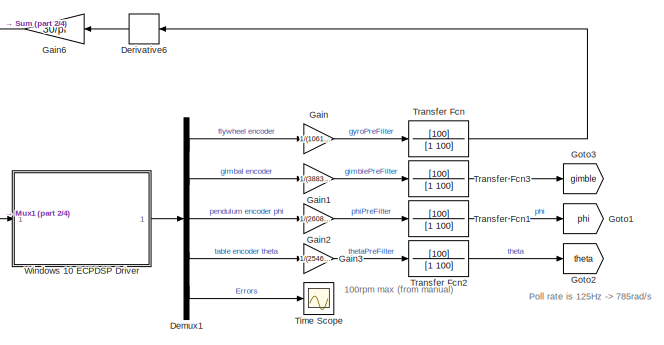
[diagram: root canvas - part 1/4, top right region]
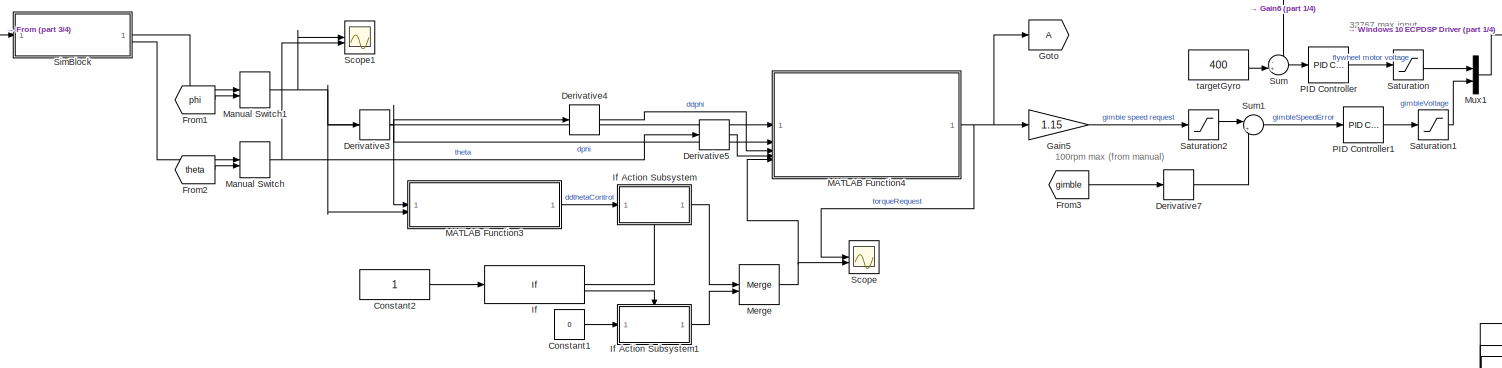
[diagram: root canvas - part 2/4, central region]
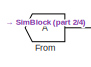
[diagram: root canvas - part 3/4, top left region]
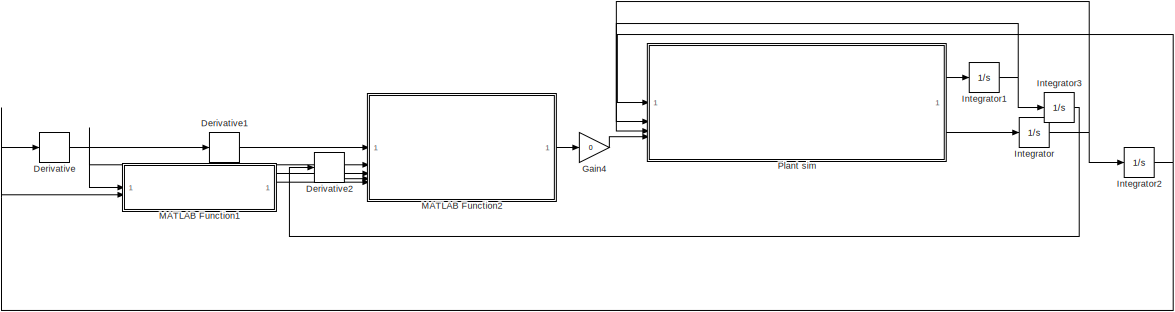
[diagram: root canvas - part 4/4, bottom right region]
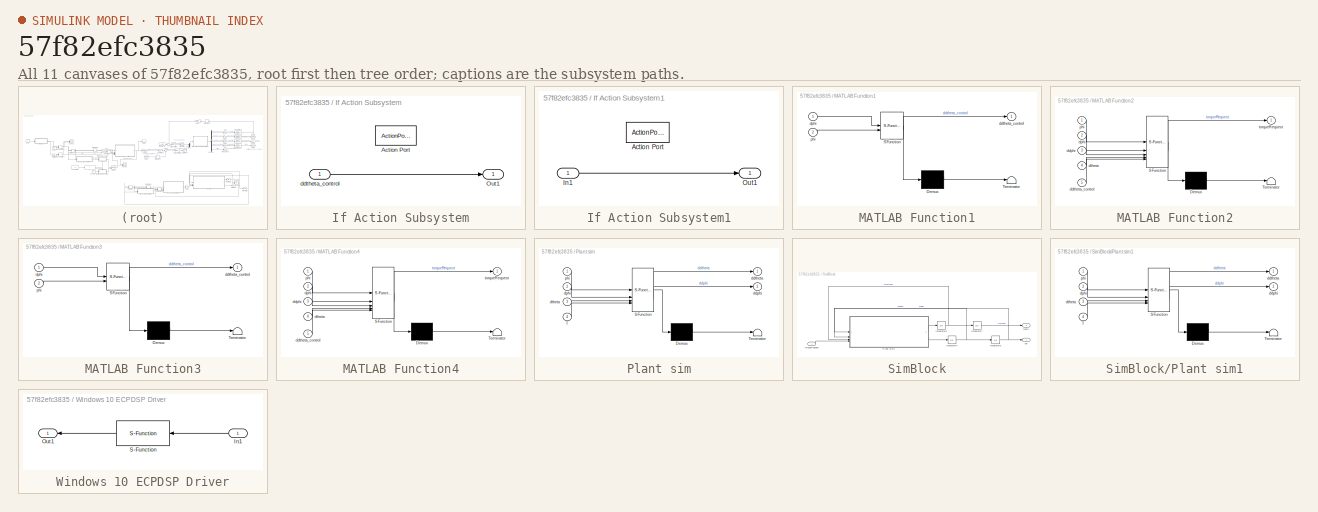
[diagram: thumbnail index - all 11 canvases of the model, root first then tree order]
MODEL slx_57f82efc3835
KIND model
CONFIG AbsTol = auto
CONFIG EnableMultiTasking = on
CONFIG FixedStep = 0.1
CONFIG MaxStep = auto
CONFIG MinStep = auto
CONFIG RelTol = 1e-3
CONFIG SampleTimeConstraint = Unconstrained
CONFIG SolverName = ode1
CONFIG StartTime = 0.0
CONFIG StopTime = 300
BLOCK [Constant] Constant1
  Value = 0
BLOCK [Constant] Constant2
BLOCK [Demux] Demux1
  DisplayOption = none
  Outputs = 5
BLOCK [Derivative] Derivative
  Commented = on
BLOCK [Derivative] Derivative1
  Commented = on
BLOCK [Derivative] Derivative2
  Commented = on
BLOCK [Derivative] Derivative3
BLOCK [Derivative] Derivative4
BLOCK [Derivative] Derivative5
BLOCK [Derivative] Derivative6
BLOCK [Derivative] Derivative7
  NameLocation = top
BLOCK [From] From
BLOCK [From] From1
  GotoTag = phi
BLOCK [From] From2
  GotoTag = theta
BLOCK [From] From3
  GotoTag = gimble
BLOCK [Gain] Gain
  Gain = 1/(1061*32)
BLOCK [Gain] Gain1
  Gain = 1/(3883*32)
BLOCK [Gain] Gain2
  Gain = 1/(2608*32)
BLOCK [Gain] Gain3
  Gain = 1/(2546*32)
BLOCK [Gain] Gain4
  Commented = on
  Gain = 0
BLOCK [Gain] Gain5
  Gain = 1.15
BLOCK [Gain] Gain6
  Gain = 30/pi
BLOCK [Goto] Goto
BLOCK [Goto] Goto1
  GotoTag = phi
BLOCK [Goto] Goto2
  GotoTag = theta
BLOCK [Goto] Goto3
  GotoTag = gimble
BLOCK [If] If
  IfExpression = u1< 15
BLOCK [SubSystem] If Action Subsystem
  NameLocation = top
  TreatAsAtomicUnit = on
BLOCK [ActionPort] If Action Subsystem/Action Port
  ActionPortLabel = if(u1 > 15)
BLOCK [Outport] If Action Subsystem/Out1
BLOCK [Inport] If Action Subsystem/ddtheta_control
BLOCK [SubSystem] If Action Subsystem1
  TreatAsAtomicUnit = on
BLOCK [ActionPort] If Action Subsystem1/Action Port
  ActionPortLabel = else
BLOCK [Inport] If Action Subsystem1/In1
BLOCK [Outport] If Action Subsystem1/Out1
BLOCK [Integrator] Integrator
  Commented = on
BLOCK [Integrator] Integrator1
  Commented = on
BLOCK [Integrator] Integrator2
  Commented = on
  InitialCondition = pi
BLOCK [Integrator] Integrator3
  Commented = on
BLOCK [SubSystem] MATLAB Function1
  Commented = on
  ErrorFcn = Stateflow.Translate.translate
  PermitHierarchicalResolution = ExplicitOnly
  SFBlockType = MATLAB Function
  TreatAsAtomicUnit = on
BLOCK [Demux] MATLAB Function1/ Demux 
  Outputs = 1
BLOCK [S-Function] MATLAB Function1/ SFunction 
  EnableBusSupport = off
  FunctionName = sf_sfun
  PortCounts = [2 2]
  SFcnIsStateOwnerBlock = off
  SFunctionDeploymentMode = off
  Tag = Stateflow S-Function 1
BLOCK [Terminator] MATLAB Function1/ Terminator 
BLOCK [Outport] MATLAB Function1/ddtheta_control
BLOCK [Inport] MATLAB Function1/dphi
BLOCK [Inport] MATLAB Function1/phi
  Port = 2
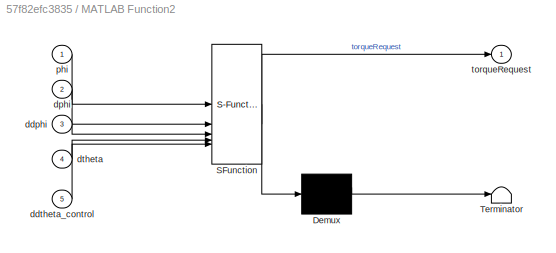
BLOCK [SubSystem] MATLAB Function2
  Commented = on
  ErrorFcn = Stateflow.Translate.translate
  PermitHierarchicalResolution = ExplicitOnly
  SFBlockType = MATLAB Function
  TreatAsAtomicUnit = on
BLOCK [Demux] MATLAB Function2/ Demux 
  Outputs = 1
BLOCK [S-Function] MATLAB Function2/ SFunction 
  EnableBusSupport = off
  FunctionName = sf_sfun
  PortCounts = [5 2]
  SFcnIsStateOwnerBlock = off
  SFunctionDeploymentMode = off
  Tag = Stateflow S-Function 3
BLOCK [Terminator] MATLAB Function2/ Terminator 
BLOCK [Inport] MATLAB Function2/ddphi
  Port = 3
BLOCK [Inport] MATLAB Function2/ddtheta_control
  Port = 5
BLOCK [Inport] MATLAB Function2/dphi
  Port = 2
BLOCK [Inport] MATLAB Function2/dtheta
  Port = 4
BLOCK [Inport] MATLAB Function2/phi
BLOCK [Outport] MATLAB Function2/torqueRequest
BLOCK [SubSystem] MATLAB Function3
  ErrorFcn = Stateflow.Translate.translate
  PermitHierarchicalResolution = ExplicitOnly
  SFBlockType = MATLAB Function
  TreatAsAtomicUnit = on
BLOCK [Demux] MATLAB Function3/ Demux 
  Outputs = 1
BLOCK [S-Function] MATLAB Function3/ SFunction 
  EnableBusSupport = off
  FunctionName = sf_sfun
  PortCounts = [2 2]
  SFcnIsStateOwnerBlock = off
  SFunctionDeploymentMode = off
  Tag = Stateflow S-Function 4
BLOCK [Terminator] MATLAB Function3/ Terminator 
BLOCK [Outport] MATLAB Function3/ddtheta_control
BLOCK [Inport] MATLAB Function3/dphi
BLOCK [Inport] MATLAB Function3/phi
  Port = 2
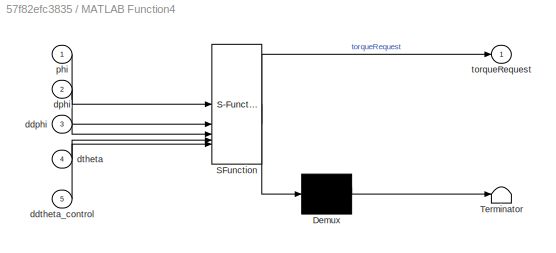
BLOCK [SubSystem] MATLAB Function4
  ErrorFcn = Stateflow.Translate.translate
  PermitHierarchicalResolution = ExplicitOnly
  SFBlockType = MATLAB Function
  TreatAsAtomicUnit = on
BLOCK [Demux] MATLAB Function4/ Demux 
  Outputs = 1
BLOCK [S-Function] MATLAB Function4/ SFunction 
  EnableBusSupport = off
  FunctionName = sf_sfun
  PortCounts = [5 2]
  SFcnIsStateOwnerBlock = off
  SFunctionDeploymentMode = off
  Tag = Stateflow S-Function 5
BLOCK [Terminator] MATLAB Function4/ Terminator 
BLOCK [Inport] MATLAB Function4/ddphi
  Port = 3
BLOCK [Inport] MATLAB Function4/ddtheta_control
  Port = 5
BLOCK [Inport] MATLAB Function4/dphi
  Port = 2
BLOCK [Inport] MATLAB Function4/dtheta
  Port = 4
BLOCK [Inport] MATLAB Function4/phi
BLOCK [Outport] MATLAB Function4/torqueRequest
BLOCK [ManualSwitch] Manual Switch
  CurrentSetting = 0
BLOCK [ManualSwitch] Manual Switch1
  CurrentSetting = 0
BLOCK [Merge] Merge
  InitialOutput = [1]
BLOCK [Mux] Mux1
  DisplayOption = bar
  Inputs = 2
BLOCK [Reference] PID Controller  REF=slpidlib/PID Controller
  LibrarySourceBlock = simulink/Continuous/PID Controller
  SourceBlock = slpidlib/PID Controller
  SourceType = PID 1dof
BLOCK [Reference] PID Controller1  REF=slpidlib/PID Controller
  LibrarySourceBlock = simulink/Continuous/PID Controller
  SourceBlock = slpidlib/PID Controller
  SourceType = PID 1dof
BLOCK [SubSystem] Plant sim
  Commented = on
  ErrorFcn = Stateflow.Translate.translate
  PermitHierarchicalResolution = ExplicitOnly
  SFBlockType = MATLAB Function
  TreatAsAtomicUnit = on
BLOCK [Demux] Plant sim/ Demux 
  Outputs = 1
BLOCK [S-Function] Plant sim/ SFunction 
  EnableBusSupport = off
  FunctionName = sf_sfun
  PortCounts = [4 3]
  SFcnIsStateOwnerBlock = off
  SFunctionDeploymentMode = off
  Tag = Stateflow S-Function 2
BLOCK [Terminator] Plant sim/ Terminator 
BLOCK [Inport] Plant sim/T
  Port = 4
BLOCK [Outport] Plant sim/ddphi
  Port = 2
BLOCK [Outport] Plant sim/ddtheta
BLOCK [Inport] Plant sim/dphi
  Port = 2
BLOCK [Inport] Plant sim/dtheta
  Port = 3
BLOCK [Inport] Plant sim/phi
BLOCK [Saturate] Saturation
  LowerLimit = -30000
  UpperLimit = 30000
BLOCK [Saturate] Saturation1
  LowerLimit = -30000
  UpperLimit = 30000
BLOCK [Saturate] Saturation2
  LowerLimit = -10
  UpperLimit = 10
BLOCK [Scope] Scope
  ActiveDisplayYMaximum = 27.262014478014951
  ActiveDisplayYMinimum = -8.20594244912589
  Floating = off
  GraphicalSettings = {"Style":{"BackgroundColor":[0.12941176470588237,0.12941176470588237,0.12941176470588237],"AxesColor":[0.07058823529411765,0.07058823529411765,0.07058823529411765],"LabelsColor":[0.8509803921568627,0.8509803921568627,0.8509803921568627],"PreserveColors":false,"Visible":[true,true],"LineStyle":["-","-"],"LineWidth":[1.5,1.5],"BarWidth":[0.9,0.9],"LineColor":["auto","auto"],"LineFaceAlpha":[1,1],"Li...<+2332ch>
  LayoutDimensionsString = [2,1]
  MultipleDisplayCache = [{"MaxYLimMag":27.262014478014951,"MaxYLimReal":27.262014478014951,"MinYLimMag":0,"MinYLimReal":-8.20594244912589,"PlotAsMagnitudePhase":false,"ShowGrid":true,"ShowLegend":false,"Title":"%<SignalLabel>","YLabel":""},{"MaxYLimMag":1,"MaxYLimReal":1,"MinYLimMag":0,"MinYLimReal":-1,"PlotAsMagnitudePhase":false,"ShowGrid":true,"ShowLegend":false,"Title":"%<SignalLabel>","YLabel":""}]
  NumInputPorts = 2
  ScopeFrameLocation = window
  WasSavedAsWebScope = on
  WindowPosition = [1267.000000,322.000000,560.000000,412.000000,]
BLOCK [Scope] Scope1
  ActiveDisplayYMaximum = 2789.2731654889776
  ActiveDisplayYMinimum = -358.80733920622544
  DataLoggingVariableName = ScopeData1
  Floating = off
  GraphicalSettings = {"Style":{"BackgroundColor":[0.12941176470588237,0.12941176470588237,0.12941176470588237],"AxesColor":[0.07058823529411765,0.07058823529411765,0.07058823529411765],"LabelsColor":[0.8509803921568627,0.8509803921568627,0.8509803921568627],"PreserveColors":false,"Visible":[true,true],"LineStyle":["-","-"],"LineWidth":[1.5,1.5],"BarWidth":[0.9,0.9],"LineColor":["auto","auto"],"LineFaceAlpha":[1,1],"Li...<+2124ch>
  MultipleDisplayCache = [{"MaxYLimMag":20368.220497233353,"MaxYLimReal":2789.2731654889776,"MinYLimMag":0,"MinYLimReal":-358.80733920622544,"PlotAsMagnitudePhase":false,"ShowGrid":true,"ShowLegend":true,"Title":"%<SignalLabel>","YLabel":""}]
  NumInputPorts = 2
  ScopeFrameLocation = window
  ShowLegend = on
  Visible = on
  WasSavedAsWebScope = on
  WindowPosition = [435.000000,407.000000,560.000000,420.000000,]
BLOCK [SubSystem] SimBlock
  Commented = on
BLOCK [Integrator] SimBlock/Integrator4
  InitialCondition = 0.6
  LimitOutput = on
  LowerSaturationLimit = -100
  UpperSaturationLimit = 100
BLOCK [Integrator] SimBlock/Integrator5
  InitialCondition = 0.01
  LimitOutput = on
  LowerSaturationLimit = -100
  UpperSaturationLimit = 100
BLOCK [Integrator] SimBlock/Integrator6
  InitialCondition = 0.8*pi
BLOCK [Integrator] SimBlock/Integrator7
  InitialCondition = 0.01
BLOCK [SubSystem] SimBlock/Plant sim1
  ErrorFcn = Stateflow.Translate.translate
  PermitHierarchicalResolution = ExplicitOnly
  SFBlockType = MATLAB Function
  TreatAsAtomicUnit = on
BLOCK [Demux] SimBlock/Plant sim1/ Demux 
  Outputs = 1
BLOCK [S-Function] SimBlock/Plant sim1/ SFunction 
  EnableBusSupport = off
  FunctionName = sf_sfun
  PortCounts = [4 3]
  SFcnIsStateOwnerBlock = off
  SFunctionDeploymentMode = off
  Tag = Stateflow S-Function 6
BLOCK [Terminator] SimBlock/Plant sim1/ Terminator 
BLOCK [Inport] SimBlock/Plant sim1/T
  Port = 4
BLOCK [Outport] SimBlock/Plant sim1/ddphi
  Port = 2
BLOCK [Outport] SimBlock/Plant sim1/ddtheta
BLOCK [Inport] SimBlock/Plant sim1/dphi
  Port = 2
BLOCK [Inport] SimBlock/Plant sim1/dtheta
  Port = 3
BLOCK [Inport] SimBlock/Plant sim1/phi
BLOCK [Outport] SimBlock/phi
BLOCK [Outport] SimBlock/theta
  Port = 2
BLOCK [Inport] SimBlock/torqueRequest
BLOCK [Sum] Sum
  Inputs = -+|
BLOCK [Sum] Sum1
  Inputs = |+-
BLOCK [Scope] Time Scope
  ActiveDisplayYMaximum = 1
  ActiveDisplayYMinimum = -1
  DataLoggingVariableName = ScopeData3
  DefaultConfigurationName = spbscopes.TimeScopeBlockCfg
  Floating = off
  FrameBasedProcessingString = Columns as channels (frame based)
  GraphicalSettings = {"Style":{"BackgroundColor":[0.12941176470588237,0.12941176470588237,0.12941176470588237],"AxesColor":[0.07058823529411765,0.07058823529411765,0.07058823529411765],"LabelsColor":[0.8509803921568627,0.8509803921568627,0.8509803921568627],"PreserveColors":false,"Visible":[true],"LineStyle":["-"],"LineWidth":[1.5],"BarWidth":[0.9],"LineColor":["auto"],"LineFaceAlpha":[1],"LineEdgeAlpha":[1],"Marker":...<+1885ch>
  LayoutDimensionsString = [1 1]
  MaximizeAxes = Auto
  MultipleDisplayCache = [{"MaxYLimMag":1,"MaxYLimReal":1,"MinYLimMag":0,"MinYLimReal":-1,"PlotAsMagnitudePhase":false,"ShowGrid":true,"ShowLegend":false,"Title":"","YLabel":"Amplitude"}]
  NumInputPorts = 1
  OpenAtSimulationStart = on
  ScopeFrameLocation = window
  ShowTimeAxisLabel = on
  TimeAxisLabels = All
  TimeUnits = Metric (based on Time Span)
  UserDataPersistent = on
  WasSavedAsWebScope = on
  WindowPosition = [687.000000,419.000000,560.000000,420.000000,]
  YLabel = Amplitude
BLOCK [TransferFcn] Transfer Fcn
  Denominator = [1 100]
  Numerator = [100]
BLOCK [TransferFcn] Transfer Fcn1
  Denominator = [1 100]
  Numerator = [100]
BLOCK [TransferFcn] Transfer Fcn2
  Denominator = [1 100]
  Numerator = [100]
BLOCK [TransferFcn] Transfer Fcn3
  Denominator = [1 100]
  Numerator = [100]
BLOCK [SubSystem] Windows 10 ECPDSP Driver
BLOCK [Inport] Windows 10 ECPDSP Driver/In1
BLOCK [Outport] Windows 10 ECPDSP Driver/Out1
BLOCK [S-Function] Windows 10 ECPDSP Driver/S-Function
  EnableBusSupport = off
  FunctionName = ECPDSPDriver
  Parameters = BaseAddr,STime,TimeOutPer,HWAccess
  SFcnIsStateOwnerBlock = off
  SFunctionDeploymentMode = off
BLOCK [Constant] targetGyro
  Value = 400
ANNOTATION (root): 100rpm max (from manual)
ANNOTATION (root): 32767 max input
ANNOTATION (root): Poll rate is 125Hz -> 785rad/s
LINE Constant1:1 -> If Action Subsystem1:1
LINE Constant2:1 -> If:1
LINE Demux1:1 -> Gain:1
LINE Demux1:2 -> Gain1:1
LINE Demux1:3 -> Gain2:1
LINE Demux1:4 -> Gain3:1
LINE Demux1:5 -> Time Scope:1
LINE Derivative1:1 -> MATLAB Function2:3
LINE Derivative2:1 -> MATLAB Function2:4
NET Derivative3:1 -> Derivative4:1, MATLAB Function3:1, MATLAB Function4:2
LINE Derivative4:1 -> MATLAB Function4:3
LINE Derivative5:1 -> MATLAB Function4:4
LINE Derivative6:1 -> Gain6:1
LINE Derivative7:1 -> Sum1:2
NET Derivative:1 -> Derivative1:1, MATLAB Function1:1, MATLAB Function2:2
LINE From1:1 -> Manual Switch1:2
LINE From2:1 -> Manual Switch:2
LINE From3:1 -> Derivative7:1
LINE From:1 -> SimBlock:1
LINE Gain1:1 -> Transfer Fcn3:1
LINE Gain2:1 -> Transfer Fcn1:1
LINE Gain3:1 -> Transfer Fcn2:1
LINE Gain4:1 -> Plant sim:4
LINE Gain5:1 -> Saturation2:1
LINE Gain6:1 -> Sum:1
LINE Gain:1 -> Transfer Fcn:1
LINE If Action Subsystem/ddtheta_control:1 -> If Action Subsystem/Out1:1
LINE If Action Subsystem1/In1:1 -> If Action Subsystem1/Out1:1
LINE If Action Subsystem1:1 -> Merge:2
LINE If Action Subsystem:1 -> Merge:1
LINE If:1 -> If Action Subsystem:ifaction
LINE If:2 -> If Action Subsystem1:ifaction
NET Integrator1:1 -> Integrator3:1, Plant sim:3
NET Integrator2:1 -> Derivative:1, MATLAB Function1:2, MATLAB Function2:1, Plant sim:1
LINE Integrator3:1 -> Derivative2:1
NET Integrator:1 -> Integrator2:1, Plant sim:2
LINE MATLAB Function1:1 -> MATLAB Function2:5
LINE MATLAB Function2:1 -> Gain4:1
LINE MATLAB Function3:1 -> If Action Subsystem:1
NET MATLAB Function4:1 -> Gain5:1, Goto:1, Scope:1
NET Manual Switch1:1 -> Derivative3:1, MATLAB Function3:2, MATLAB Function4:1, Scope1:1
NET Manual Switch:1 -> Derivative5:1, Scope1:2
NET Merge:1 -> MATLAB Function4:5, Scope:2
LINE Mux1:1 -> Windows 10 ECPDSP Driver:1
LINE PID Controller1:1 -> Saturation1:1
LINE PID Controller:1 -> Saturation:1
LINE Plant sim:1 -> Integrator1:1
LINE Plant sim:2 -> Integrator:1
LINE Saturation1:1 -> Mux1:2
LINE Saturation2:1 -> Sum1:1
LINE Saturation:1 -> Mux1:1
NET SimBlock/Integrator4:1 -> SimBlock/Integrator6:1, SimBlock/Plant sim1:2
NET SimBlock/Integrator5:1 -> SimBlock/Integrator7:1, SimBlock/Plant sim1:3
NET SimBlock/Integrator6:1 -> SimBlock/Plant sim1:1, SimBlock/phi:1
LINE SimBlock/Integrator7:1 -> SimBlock/theta:1
LINE SimBlock/Plant sim1:1 -> SimBlock/Integrator5:1
LINE SimBlock/Plant sim1:2 -> SimBlock/Integrator4:1
LINE SimBlock/torqueRequest:1 -> SimBlock/Plant sim1:4
LINE SimBlock:1 -> Manual Switch1:1
LINE SimBlock:2 -> Manual Switch:1
LINE Sum1:1 -> PID Controller1:1
LINE Sum:1 -> PID Controller:1
LINE Transfer Fcn1:1 -> Goto1:1
LINE Transfer Fcn2:1 -> Goto2:1
LINE Transfer Fcn3:1 -> Goto3:1
LINE Transfer Fcn:1 -> Derivative6:1
LINE Windows 10 ECPDSP Driver/In1:1 -> Windows 10 ECPDSP Driver/S-Function:1
LINE Windows 10 ECPDSP Driver/S-Function:1 -> Windows 10 ECPDSP Driver/Out1:1
LINE Windows 10 ECPDSP Driver:1 -> Demux1:1
LINE targetGyro:1 -> Sum:2
note: NET lines group one-source signal fan-out (src -> all destinations, sorted); 1:1 wires keep LINE
CHART MATLAB Function1 states=1 transitions=1
  STATE_LABEL 'eML_blk_kernel()'
  STATE_LABEL 'SCRIPT:\nfunction ddtheta_control = fcn(dphi, phi)\nR = Rh\nl = lcg;\nr = 0; %reduced into J1_bar\nM = 0; %reduced into J1_bar\ng = grav;\nc1 = 1; %friction of base\nc2 = 0; %friction of pivot\n\nJ =  J1_bar% J - inertia of the table\nIyy = Jy \nI = Jz_bar%  I - inertia of the pendulum\n\nk = 1\nE = 0.5*I*dphi^2+m*g*l*(cos(phi)-1);\nddtheta_control = -k*E*dphi*cos(phi)/R;\n\n\n'
CHART Plant sim states=1 transitions=1
  STATE_LABEL 'eML_blk_kernel()'
  STATE_LABEL 'SCRIPT:\nfunction [ddtheta, ddphi] = fcn(phi, dphi, dtheta, T)\n\nR = Rh\nl = lcg;\nr = 0; %reduced into J1_bar\nM = 0; %reduced into J1_bar\ng = grav;\nc1 = 1; %friction of base\nc2 = 0; %friction of pivot\n\nJ =  J1_bar% J - inertia of the table\nIyy = Jy \nI = Jz_bar%  I - inertia of the pendulum\n\nddtheta = -(R*m*sin(phi)*dphi^2*l + dtheta*m*sin(2*phi)*dphi*l^2 + Iyy*dtheta*sin(2*phi)*dphi - R*ddphi*m*cos(p...<+479ch>'
CHART MATLAB Function2 states=1 transitions=1
  STATE_LABEL 'eML_blk_kernel()'
  STATE_LABEL 'SCRIPT:\nfunction torqueRequest = fcn(phi, dphi, ddphi,dtheta, ddtheta_control)\nR = Rh;\nl = lcg;\nr = 0; %reduced into J1_bar\nM = 0; %reduced into J1_bar\ng = grav;\nc1 = 1; %friction of base\nc2 = 0; %friction of pivot\n\nJ =  J1_bar% J - inertia of the table\nIyy = Jy \nI = Jz_bar%  I - inertia of the pendulum\n\n torqueRequest = Iyy*ddtheta_control + J*ddtheta_control + c1*dtheta + ddtheta_control*m*R^2 +...<+198ch>'
CHART MATLAB Function3 states=1 transitions=1
  STATE_LABEL 'eML_blk_kernel()'
  STATE_LABEL 'SCRIPT:\nfunction ddtheta_control = fcn(dphi, phi)\nR = 0.3700\nl = 0.2698\nr = 0; %reduced into J1_bar\nM = 0; %reduced into J1_bar\ng = 9.81;\nc1 = 1; %friction of base\nc2 = 0; %friction of pivot\n\nJ =  0.1530 % J1_bar J - inertia of the table\nIyy = 5.5625e-05 %Jy \nI = 0.0131%Jz_bar%  I - inertia of the pendulum\nm =     0.1580\n\n\nk = 10\nE = 0.5*I*dphi^2+m*g*l*(cos(phi)-1);\nddtheta_control = -k*E*dphi*cos...<+11ch>'
CHART MATLAB Function4 states=1 transitions=1
  STATE_LABEL 'eML_blk_kernel()'
  STATE_LABEL 'SCRIPT:\nfunction torqueRequest = fcn(phi, dphi, ddphi,dtheta, ddtheta_control)\nR = 0.3700\nl = 0.2698\nr = 0; %reduced into J1_bar\nM = 0; %reduced into J1_bar\ng = 9.81;\nc1 = 1; %friction of base\nc2 = 0; %friction of pivot\n\nJ =  0.1530 % J1_bar J - inertia of the table\nIyy = 5.5625e-05 %Jy \nI = 0.0131%Jz_bar%  I - inertia of the pendulum\nm =     0.1580\n\n\ntorqueRequest = Iyy*ddtheta_control + J*ddthet...<+245ch>'
CHART SimBlock/Plant sim1 states=1 transitions=1
  STATE_LABEL 'eML_blk_kernel()'
  STATE_LABEL 'SCRIPT:\nfunction [ddtheta, ddphi] = fcn(phi, dphi, dtheta, T)\n\nR = 0.3700\nl = 0.2698\nr = 0; %reduced into J1_bar\nM = 0; %reduced into J1_bar\ng = 9.81;\nc1 = 1; %friction of base\nc2 = 0; %friction of pivot\n\nJ =  0.1530 % J1_bar J - inertia of the table\nIyy = 5.5625e-05 %Jy \nI = 0.0131%Jz_bar%  I - inertia of the pendulum\nm =     0.1580\nddphi = -(c2*dphi - 0.5000*Iyy*dtheta^2*sin(2*phi) + g*l*m*sin(p...<+520ch>'
CHART  states=0 transitions=0
CHART  states=0 transitions=0
CHART  states=0 transitions=0
CHART  states=0 transitions=0
CHART  states=0 transitions=0
CHART  states=0 transitions=0
